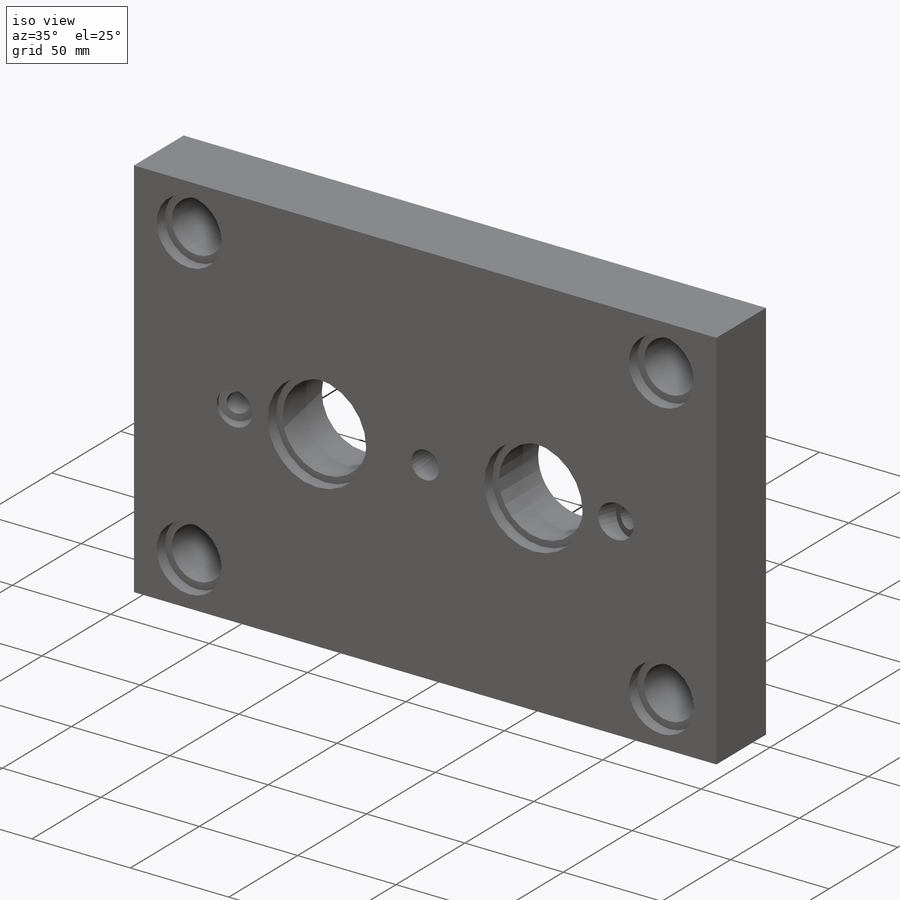
[diagram: iso view]
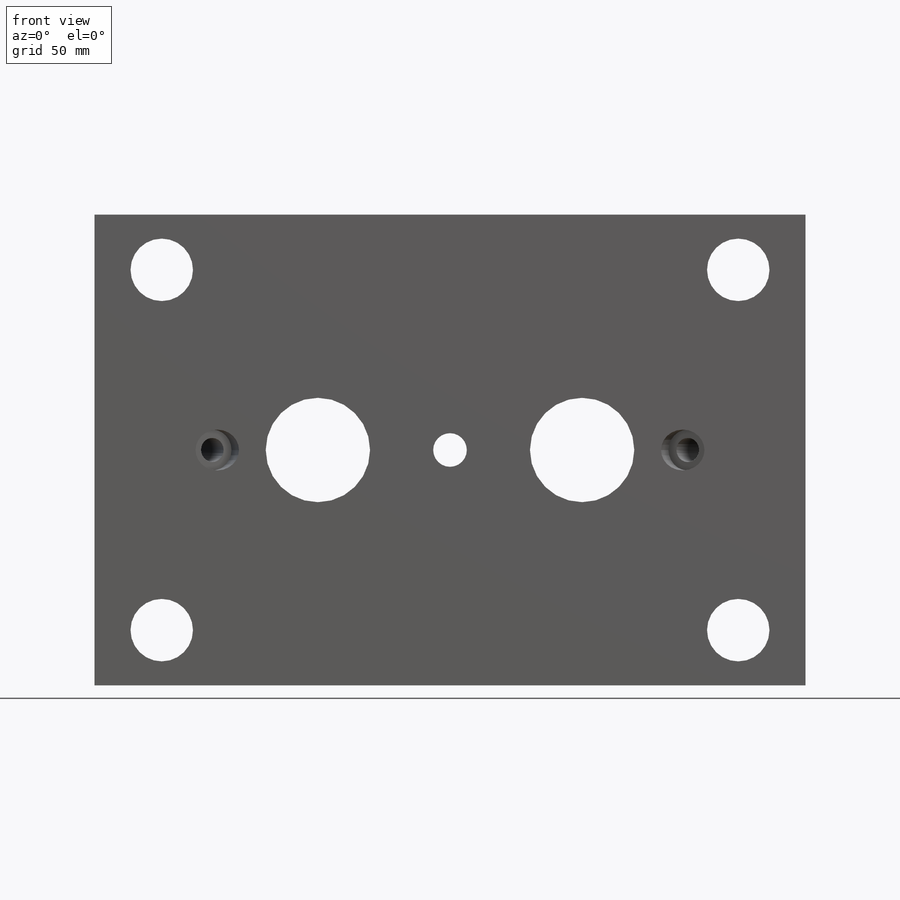
[diagram: front view]
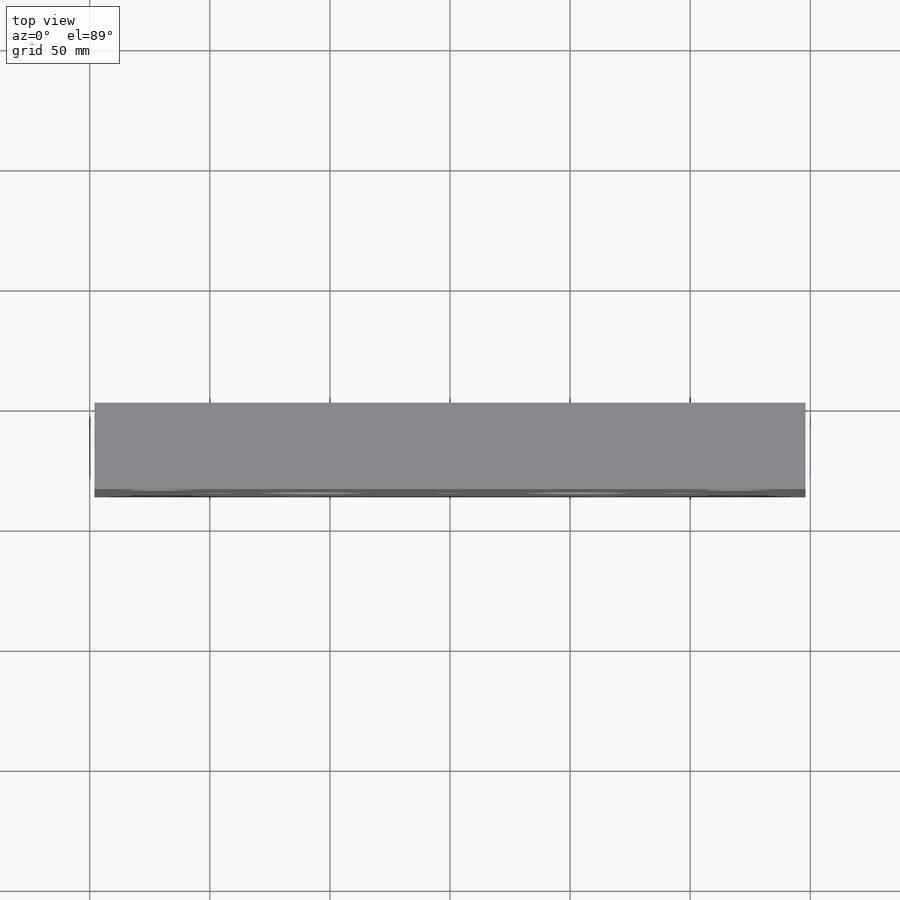
[diagram: top view]
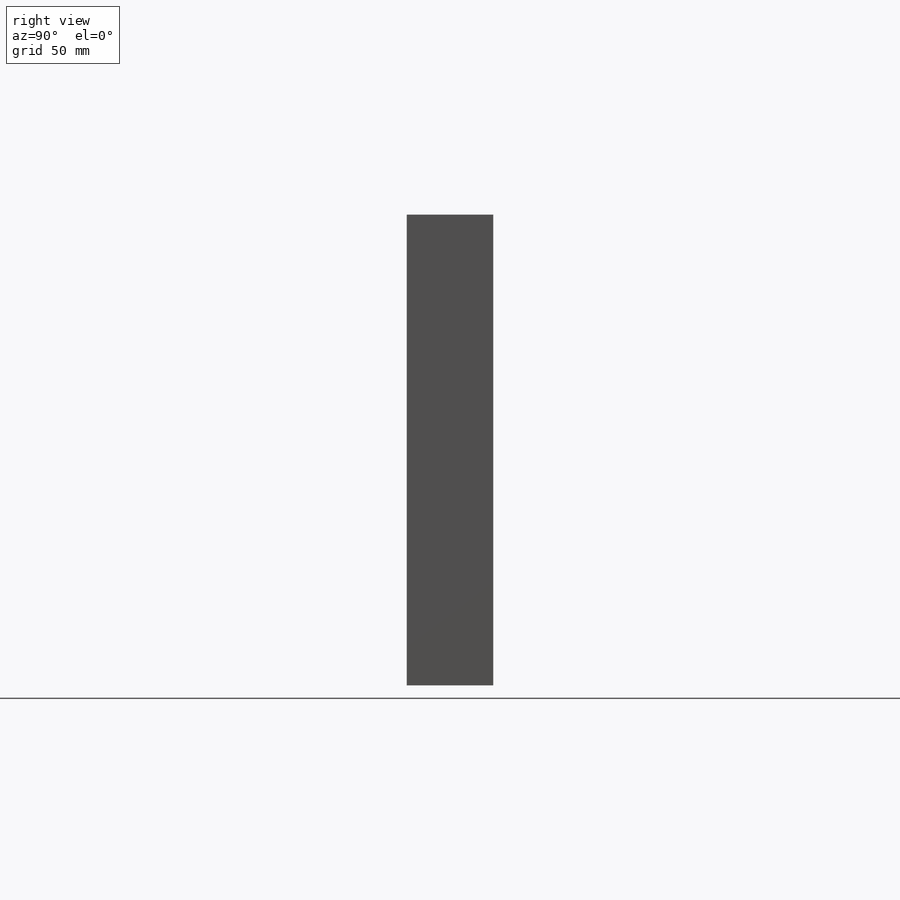
[diagram: right view]
SOLIDWORKS PART (.sldprt)
format: sldprt  version: not decoded by parser v0  size: 662,016 bytes
history: native  units: mm
features: sketch x7, cut_extrude x4, cut_revolve x2, material x1, extrude x1, mirror x1 (+11 scaffold rows collapsed)
feature tree (27):
  scaffold x11  (default folders/planes/origin — collapsed)
  material  "Материал <не указан>"
  sketch  "Sketch1"
  extrude  "Extrude1"  Depth=36mm
  sketch  "Sketch2"
  cut_extrude  "Extrude2"  [1 undecoded]
  sketch  "Sketch3"  dims[D1=33.0mm]
  cut_extrude  "Extrude3"  Depth=6mm
  sketch  "Sketch5"  dims[D1=50.0mm]
  cut_extrude  "Extrude5"  Depth=6mm
  sketch  "Sketch7"  dims[c1.D1=~36.433666mm c2.D1=~177.302834deg c3.D1=10.0mm c3.D2=~8.318777mm c4.D2=~177.705446deg c5.D2=17.0mm c5.D3=6.0mm]
  cut_revolve  "Cut-Revolve2"  Angle=360deg
  mirror  "Mirror1"
  sketch  "Sketch4"  dims[D1=14.0mm]
  cut_extrude  "Extrude4"  [1 undecoded]
  sketch  "Sketch6"  dims[D1=5.0mm D2=3.0mm D3=39.68mm]
  cut_revolve  "Cut-Revolve1"  Angle=360deg
decode coverage: 10 of 15 modeling features carry decoded parameters
note: ~ marks probable driven/reference dimensions
note: 2 parameter values undecoded
note: suppression state not decoded; provenance and decode notes live in map.json
